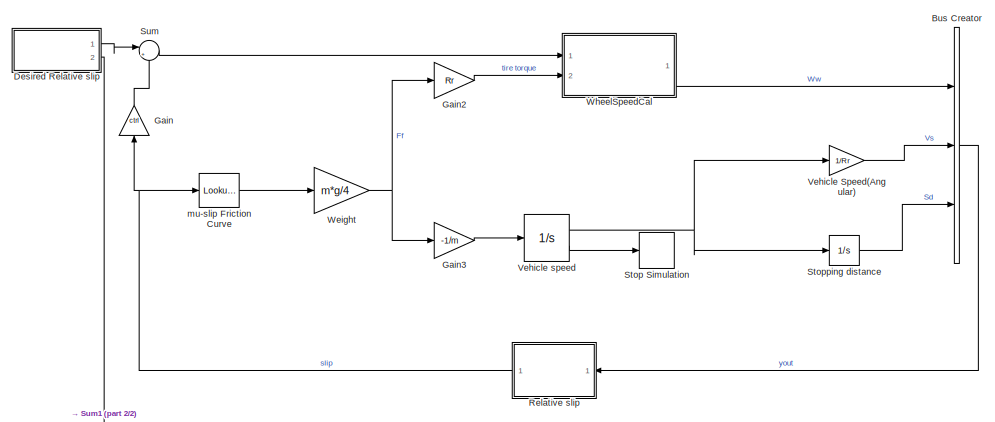
[diagram: root canvas - part 1/2, top center region]
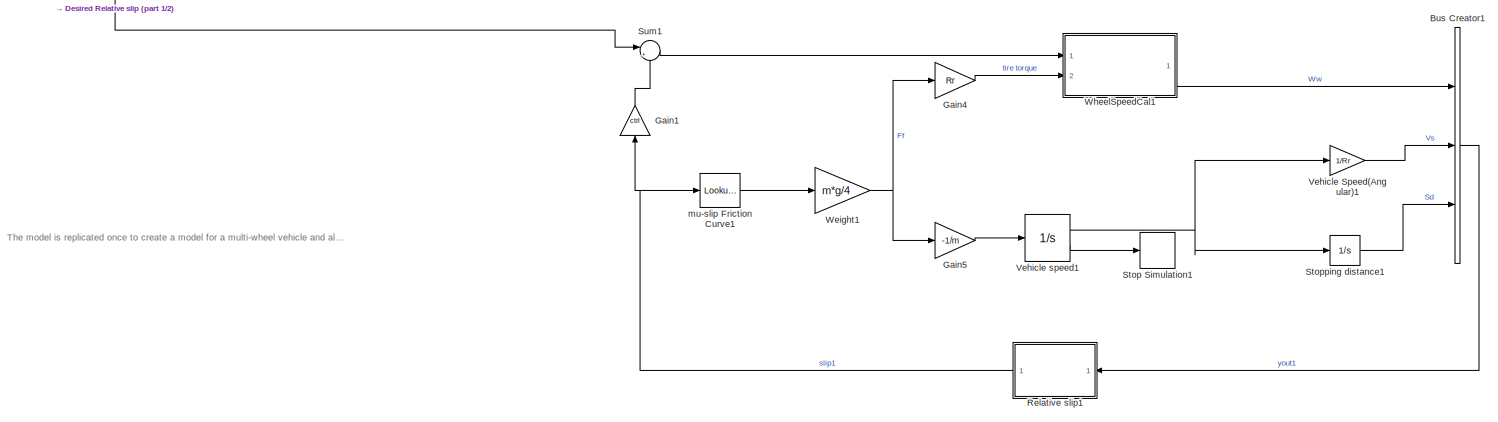
[diagram: root canvas - part 2/2, full width, bottom band]
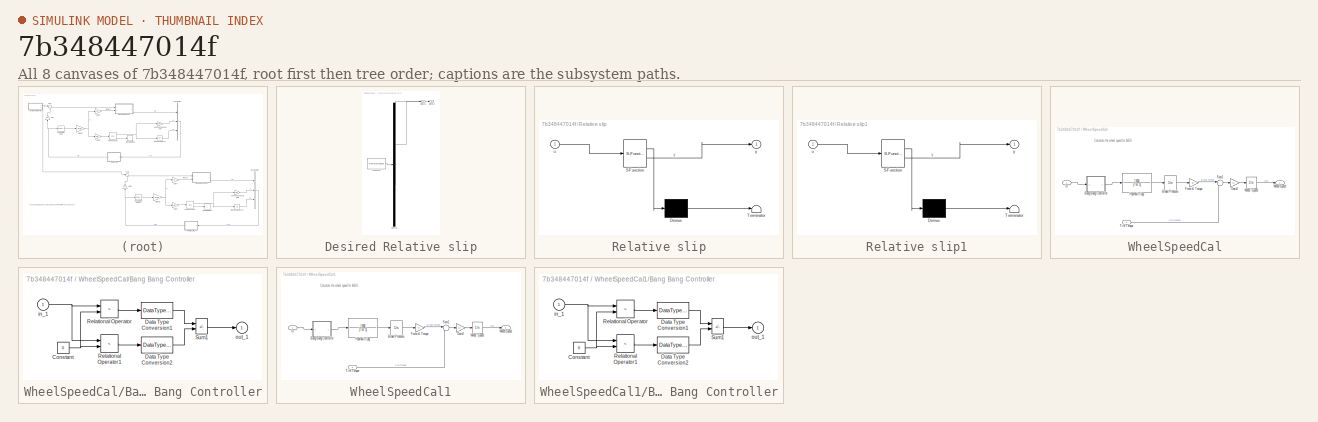
[diagram: thumbnail index - all 8 canvases of the model, root first then tree order]
MODEL slx_7b348447014f
KIND model
CONFIG AbsTol = 1e-6
CONFIG EnableMultiTasking = off
CONFIG FixedStep = auto
CONFIG MaxStep = .01
CONFIG MinStep = auto
CONFIG PreLoadFcn = initdata
CONFIG RelTol = 1e-3
CONFIG SampleTimeConstraint = Unconstrained
CONFIG SolverName = ode45
CONFIG StartTime = 0.0
CONFIG StopFcn = if exist ('ABS_output')\n    plots;\nend
CONFIG StopTime = 25
BLOCK [BusCreator] Bus Creator
  DisplayOption = bar
  InheritFromInputs = on
  Inputs = 3
  Ports = [3, 1]
BLOCK [BusCreator] Bus Creator1
  DisplayOption = bar
  InheritFromInputs = on
  Inputs = 3
  Ports = [3, 1]
BLOCK [SubSystem] Desired Relative slip
  ClipboardFcn = sigbuilder_block('clipboard');
  CloseFcn = sigbuilder_block('close');
  ContinueFcn = sigbuilder_block('continue');
  CopyFcn = sigbuilder_block('copy');
  DeleteFcn = sigbuilder_block('delete');
  LoadFcn = sigbuilder_block('load');
  MaskHideContents = on
  ModelCloseFcn = sigbuilder_block('modelClose');
  NameChangeFcn = sigbuilder_block('namechange');
  OpenFcn = sigbuilder_block('open',[5.4 30 1141.2 522.6 ]);
  PauseFcn = sigbuilder_block('pause');
  Ports = [0, 2]
  PreSaveFcn = sigbuilder_block('preSave');
  RequestExecContextInheritance = off
  StartFcn = sigbuilder_block('start');
  StopFcn = sigbuilder_block('stop');
  Tag = STV Subsys
BLOCK [Demux] Desired Relative slip/Demux
  DisplayOption = none
  Outputs = 2
  Ports = [1, 2]
  Tag = STV Demux
BLOCK [FromWorkspace] Desired Relative slip/FromWs
  Tag = STV FromWs
  VariableName = tuvar
BLOCK [Outport] Desired Relative slip/Signal 1
  Tag = STV Outport
BLOCK [Outport] Desired Relative slip/Signal 2
  Port = 2
  Tag = STV Outport
BLOCK [Gain] Gain
  Gain = ctrl
  NameLocation = right
BLOCK [Gain] Gain1
  Gain = ctrl
  NameLocation = right
BLOCK [Gain] Gain2
  Gain = Rr
BLOCK [Gain] Gain3
  Gain = -1/m
BLOCK [Gain] Gain4
  Gain = Rr
BLOCK [Gain] Gain5
  Gain = -1/m
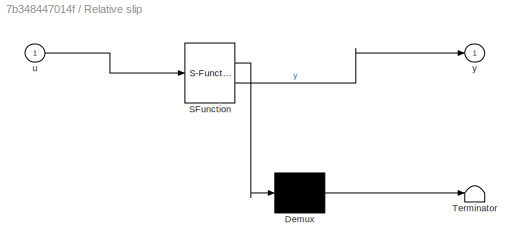
BLOCK [SubSystem] Relative slip
  ErrorFcn = Stateflow.Translate.translate
  NameLocation = top
  PermitHierarchicalResolution = ExplicitOnly
  Ports = [1, 1]
  RequestExecContextInheritance = off
  SFBlockType = MATLAB Function
  TreatAsAtomicUnit = on
BLOCK [Demux] Relative slip/ Demux 
  Outputs = 1
  Ports = [1, 1]
BLOCK [S-Function] Relative slip/ SFunction 
  EnableBusSupport = on
  FunctionName = sf_sfun
  PortCounts = [1 2]
  Ports = [1, 2]
  SFcnIsStateOwnerBlock = off
  SFunctionDeploymentMode = off
  Tag = Stateflow S-Function 2
BLOCK [Terminator] Relative slip/ Terminator 
BLOCK [Inport] Relative slip/u
BLOCK [Outport] Relative slip/y
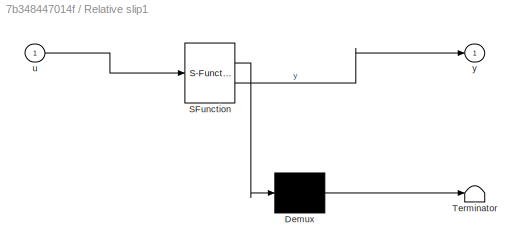
BLOCK [SubSystem] Relative slip1
  ErrorFcn = Stateflow.Translate.translate
  NameLocation = top
  PermitHierarchicalResolution = ExplicitOnly
  Ports = [1, 1]
  RequestExecContextInheritance = off
  SFBlockType = MATLAB Function
  TreatAsAtomicUnit = on
BLOCK [Demux] Relative slip1/ Demux 
  Outputs = 1
  Ports = [1, 1]
BLOCK [S-Function] Relative slip1/ SFunction 
  EnableBusSupport = on
  FunctionName = sf_sfun
  PortCounts = [1 2]
  Ports = [1, 2]
  SFcnIsStateOwnerBlock = off
  SFunctionDeploymentMode = off
  Tag = Stateflow S-Function 1
BLOCK [Terminator] Relative slip1/ Terminator 
BLOCK [Inport] Relative slip1/u
BLOCK [Outport] Relative slip1/y
BLOCK [Stop] Stop Simulation
BLOCK [Stop] Stop Simulation1
BLOCK [Integrator] Stopping distance
  Ports = [1, 1]
BLOCK [Integrator] Stopping distance1
  Ports = [1, 1]
BLOCK [Sum] Sum
  Inputs = |+-
  Ports = [2, 1]
BLOCK [Sum] Sum1
  Inputs = |+-
  Ports = [2, 1]
BLOCK [Gain] Vehicle Speed(Angular)
  Gain = 1/Rr
BLOCK [Gain] Vehicle Speed(Angular)1
  Gain = 1/Rr
BLOCK [Integrator] Vehicle speed
  InitialCondition = v0
  LimitOutput = on
  LowerSaturationLimit = 0
  Ports = [1, 2]
  ShowSaturationPort = on
  UpperSaturationLimit = 1000
BLOCK [Integrator] Vehicle speed1
  InitialCondition = v0
  LimitOutput = on
  LowerSaturationLimit = 0
  Ports = [1, 2]
  ShowSaturationPort = on
  UpperSaturationLimit = 1000
BLOCK [Gain] Weight
  Gain = m*g/4
BLOCK [Gain] Weight1
  Gain = m*g/4
BLOCK [SubSystem] WheelSpeedCal
  Ports = [2, 1]
  RequestExecContextInheritance = off
BLOCK [SubSystem] WheelSpeedCal/Bang Bang Controller
  Ports = [1, 1]
  RequestExecContextInheritance = off
BLOCK [Constant] WheelSpeedCal/Bang Bang Controller/Constant
  Value = 0
BLOCK [DataTypeConversion] WheelSpeedCal/Bang Bang Controller/Data Type Conversion1
  OutDataTypeStr = double
BLOCK [DataTypeConversion] WheelSpeedCal/Bang Bang Controller/Data Type Conversion2
  OutDataTypeStr = double
BLOCK [RelationalOperator] WheelSpeedCal/Bang Bang Controller/Relational Operator
  Operator = >
  OutDataTypeStr = boolean
  Ports = [2, 1]
BLOCK [RelationalOperator] WheelSpeedCal/Bang Bang Controller/Relational Operator1
  Operator = <
  OutDataTypeStr = boolean
  Ports = [2, 1]
BLOCK [Sum] WheelSpeedCal/Bang Bang Controller/Sum1
  IconShape = rectangular
  InputSameDT = on
  Inputs = +-
  OutDataTypeStr = Inherit: Same as first input
  Ports = [2, 1]
  SaturateOnIntegerOverflow = on
BLOCK [Inport] WheelSpeedCal/Bang Bang Controller/in_1
BLOCK [Outport] WheelSpeedCal/Bang Bang Controller/out_1
  InitialOutput = 0
  VectorParamsAs1DForOutWhenUnconnected = off
BLOCK [Integrator] WheelSpeedCal/Brake Pressure
  LimitOutput = on
  LowerSaturationLimit = 0
  Ports = [1, 1]
  UpperSaturationLimit = PBmax
BLOCK [Gain] WheelSpeedCal/Force & Torque
  Gain = Kf
  NameLocation = top
BLOCK [Gain] WheelSpeedCal/Gain2
  Gain = 1/I
BLOCK [TransferFcn] WheelSpeedCal/Hydraulic Lag
  Denominator = [TB 1]
  Numerator = [100]
BLOCK [Inport] WheelSpeedCal/In
BLOCK [Sum] WheelSpeedCal/Sum1
  Inputs = |-+
  Ports = [2, 1]
BLOCK [Inport] WheelSpeedCal/Tire Torque
  Port = 2
BLOCK [Integrator] WheelSpeedCal/Wheel Speed
  InitialCondition = v0/Rr
  LimitOutput = on
  LowerSaturationLimit = 0
  Ports = [1, 1]
  UpperSaturationLimit = 1000
BLOCK [Outport] WheelSpeedCal/WheelSpeed
BLOCK [SubSystem] WheelSpeedCal1
  Ports = [2, 1]
  RequestExecContextInheritance = off
BLOCK [SubSystem] WheelSpeedCal1/Bang Bang Controller
  Ports = [1, 1]
  RequestExecContextInheritance = off
BLOCK [Constant] WheelSpeedCal1/Bang Bang Controller/Constant
  Value = 0
BLOCK [DataTypeConversion] WheelSpeedCal1/Bang Bang Controller/Data Type Conversion1
  OutDataTypeStr = double
BLOCK [DataTypeConversion] WheelSpeedCal1/Bang Bang Controller/Data Type Conversion2
  OutDataTypeStr = double
BLOCK [RelationalOperator] WheelSpeedCal1/Bang Bang Controller/Relational Operator
  Operator = >
  OutDataTypeStr = boolean
  Ports = [2, 1]
BLOCK [RelationalOperator] WheelSpeedCal1/Bang Bang Controller/Relational Operator1
  Operator = <
  OutDataTypeStr = boolean
  Ports = [2, 1]
BLOCK [Sum] WheelSpeedCal1/Bang Bang Controller/Sum1
  IconShape = rectangular
  InputSameDT = on
  Inputs = +-
  OutDataTypeStr = Inherit: Same as first input
  Ports = [2, 1]
  SaturateOnIntegerOverflow = on
BLOCK [Inport] WheelSpeedCal1/Bang Bang Controller/in_1
BLOCK [Outport] WheelSpeedCal1/Bang Bang Controller/out_1
  InitialOutput = 0
  VectorParamsAs1DForOutWhenUnconnected = off
BLOCK [Integrator] WheelSpeedCal1/Brake Pressure
  LimitOutput = on
  LowerSaturationLimit = 0
  Ports = [1, 1]
  UpperSaturationLimit = PBmax
BLOCK [Gain] WheelSpeedCal1/Force & Torque
  Gain = Kf
  NameLocation = top
BLOCK [Gain] WheelSpeedCal1/Gain2
  Gain = 1/I
BLOCK [TransferFcn] WheelSpeedCal1/Hydraulic Lag
  Denominator = [TB 1]
  Numerator = [100]
BLOCK [Inport] WheelSpeedCal1/In
BLOCK [Sum] WheelSpeedCal1/Sum1
  Inputs = |-+
  Ports = [2, 1]
BLOCK [Inport] WheelSpeedCal1/Tire Torque
  Port = 2
BLOCK [Integrator] WheelSpeedCal1/Wheel Speed
  InitialCondition = v0/Rr
  LimitOutput = on
  LowerSaturationLimit = 0
  Ports = [1, 1]
  UpperSaturationLimit = 1000
BLOCK [Outport] WheelSpeedCal1/WheelSpeed
BLOCK [Lookup_n-D] mu-slip Friction Curve
  BreakpointsForDimension1 = slip
  BreakpointsForDimension3 = [5, 7]
  InputPortMap = u0
  InternalRulePriority = Speed
  NumberOfTableDimensions = 1
  Ports = [1, 1]
  RndMeth = Simplest
  Table = mu
BLOCK [Lookup_n-D] mu-slip Friction Curve1
  BreakpointsForDimension1 = slip
  BreakpointsForDimension3 = [5, 7]
  InputPortMap = u0
  InternalRulePriority = Speed
  NumberOfTableDimensions = 1
  Ports = [1, 1]
  RndMeth = Simplest
  Table = mu
ANNOTATION (root): The model is replicated once to create a model for a multi-wheel vehicle and also to demonstrate the performance when different test signal is given as input.
ANNOTATION WheelSpeedCal: Calculate the wheel speed for ABS
ANNOTATION WheelSpeedCal1: Calculate the wheel speed for ABS
LINE Bus Creator1:1 -> Relative slip1:1
LINE Bus Creator:1 -> Relative slip:1
LINE Desired Relative slip:1 -> Sum:1
LINE Desired Relative slip:2 -> Sum1:1
LINE Gain1:1 -> Sum1:2
LINE Gain2:1 -> WheelSpeedCal:2
LINE Gain3:1 -> Vehicle speed:1
LINE Gain4:1 -> WheelSpeedCal1:2
LINE Gain5:1 -> Vehicle speed1:1
LINE Gain:1 -> Sum:2
NET Relative slip1:1 -> Gain1:1, mu-slip Friction Curve1:1
NET Relative slip:1 -> Gain:1, mu-slip Friction Curve:1
LINE Stopping distance1:1 -> Bus Creator1:3
LINE Stopping distance:1 -> Bus Creator:3
LINE Sum1:1 -> WheelSpeedCal1:1
LINE Sum:1 -> WheelSpeedCal:1
LINE Vehicle Speed(Angular)1:1 -> Bus Creator1:2
LINE Vehicle Speed(Angular):1 -> Bus Creator:2
NET Vehicle speed1:1 -> Stopping distance1:1, Vehicle Speed(Angular)1:1
LINE Vehicle speed1:2 -> Stop Simulation1:1
NET Vehicle speed:1 -> Stopping distance:1, Vehicle Speed(Angular):1
LINE Vehicle speed:2 -> Stop Simulation:1
NET Weight1:1 -> Gain4:1, Gain5:1
NET Weight:1 -> Gain2:1, Gain3:1
NET WheelSpeedCal/Bang Bang Controller/Constant:1 -> WheelSpeedCal/Bang Bang Controller/Relational Operator1:2, WheelSpeedCal/Bang Bang Controller/Relational Operator:2
LINE WheelSpeedCal/Bang Bang Controller/Data Type Conversion1:1 -> WheelSpeedCal/Bang Bang Controller/Sum1:1
LINE WheelSpeedCal/Bang Bang Controller/Data Type Conversion2:1 -> WheelSpeedCal/Bang Bang Controller/Sum1:2
LINE WheelSpeedCal/Bang Bang Controller/Relational Operator1:1 -> WheelSpeedCal/Bang Bang Controller/Data Type Conversion2:1
LINE WheelSpeedCal/Bang Bang Controller/Relational Operator:1 -> WheelSpeedCal/Bang Bang Controller/Data Type Conversion1:1
LINE WheelSpeedCal/Bang Bang Controller/Sum1:1 -> WheelSpeedCal/Bang Bang Controller/out_1:1
NET WheelSpeedCal/Bang Bang Controller/in_1:1 -> WheelSpeedCal/Bang Bang Controller/Relational Operator1:1, WheelSpeedCal/Bang Bang Controller/Relational Operator:1
LINE WheelSpeedCal/Bang Bang Controller:1 -> WheelSpeedCal/Hydraulic Lag:1
LINE WheelSpeedCal/Brake Pressure:1 -> WheelSpeedCal/Force & Torque:1
LINE WheelSpeedCal/Force & Torque:1 -> WheelSpeedCal/Sum1:1
LINE WheelSpeedCal/Gain2:1 -> WheelSpeedCal/Wheel Speed:1
LINE WheelSpeedCal/Hydraulic Lag:1 -> WheelSpeedCal/Brake Pressure:1
LINE WheelSpeedCal/In:1 -> WheelSpeedCal/Bang Bang Controller:1
LINE WheelSpeedCal/Sum1:1 -> WheelSpeedCal/Gain2:1
LINE WheelSpeedCal/Tire Torque:1 -> WheelSpeedCal/Sum1:2
LINE WheelSpeedCal/Wheel Speed:1 -> WheelSpeedCal/WheelSpeed:1
NET WheelSpeedCal1/Bang Bang Controller/Constant:1 -> WheelSpeedCal1/Bang Bang Controller/Relational Operator1:2, WheelSpeedCal1/Bang Bang Controller/Relational Operator:2
LINE WheelSpeedCal1/Bang Bang Controller/Data Type Conversion1:1 -> WheelSpeedCal1/Bang Bang Controller/Sum1:1
LINE WheelSpeedCal1/Bang Bang Controller/Data Type Conversion2:1 -> WheelSpeedCal1/Bang Bang Controller/Sum1:2
LINE WheelSpeedCal1/Bang Bang Controller/Relational Operator1:1 -> WheelSpeedCal1/Bang Bang Controller/Data Type Conversion2:1
LINE WheelSpeedCal1/Bang Bang Controller/Relational Operator:1 -> WheelSpeedCal1/Bang Bang Controller/Data Type Conversion1:1
LINE WheelSpeedCal1/Bang Bang Controller/Sum1:1 -> WheelSpeedCal1/Bang Bang Controller/out_1:1
NET WheelSpeedCal1/Bang Bang Controller/in_1:1 -> WheelSpeedCal1/Bang Bang Controller/Relational Operator1:1, WheelSpeedCal1/Bang Bang Controller/Relational Operator:1
LINE WheelSpeedCal1/Bang Bang Controller:1 -> WheelSpeedCal1/Hydraulic Lag:1
LINE WheelSpeedCal1/Brake Pressure:1 -> WheelSpeedCal1/Force & Torque:1
LINE WheelSpeedCal1/Force & Torque:1 -> WheelSpeedCal1/Sum1:1
LINE WheelSpeedCal1/Gain2:1 -> WheelSpeedCal1/Wheel Speed:1
LINE WheelSpeedCal1/Hydraulic Lag:1 -> WheelSpeedCal1/Brake Pressure:1
LINE WheelSpeedCal1/In:1 -> WheelSpeedCal1/Bang Bang Controller:1
LINE WheelSpeedCal1/Sum1:1 -> WheelSpeedCal1/Gain2:1
LINE WheelSpeedCal1/Tire Torque:1 -> WheelSpeedCal1/Sum1:2
LINE WheelSpeedCal1/Wheel Speed:1 -> WheelSpeedCal1/WheelSpeed:1
LINE WheelSpeedCal1:1 -> Bus Creator1:1
LINE WheelSpeedCal:1 -> Bus Creator:1
LINE mu-slip Friction Curve1:1 -> Weight1:1
LINE mu-slip Friction Curve:1 -> Weight:1
note: NET lines group one-source signal fan-out (src -> all destinations, sorted); 1:1 wires keep LINE
CHART Relative slip states=1 transitions=1
  STATE_LABEL 'eML_blk_kernel()'
  STATE_LABEL 'SCRIPT:\nfunction y = fcn(u)\n\ny = 1.0 - u(1)/(u(2) + (u(2)==0)*eps);\n'
CHART Relative slip1 states=1 transitions=1
  STATE_LABEL 'eML_blk_kernel()'
  STATE_LABEL 'SCRIPT:\nfunction y = fcn(u)\n\ny = 1.0 - u(1)/(u(2) + (u(2)==0)*eps);\n'
CHART  states=0 transitions=0
CHART  states=0 transitions=0
